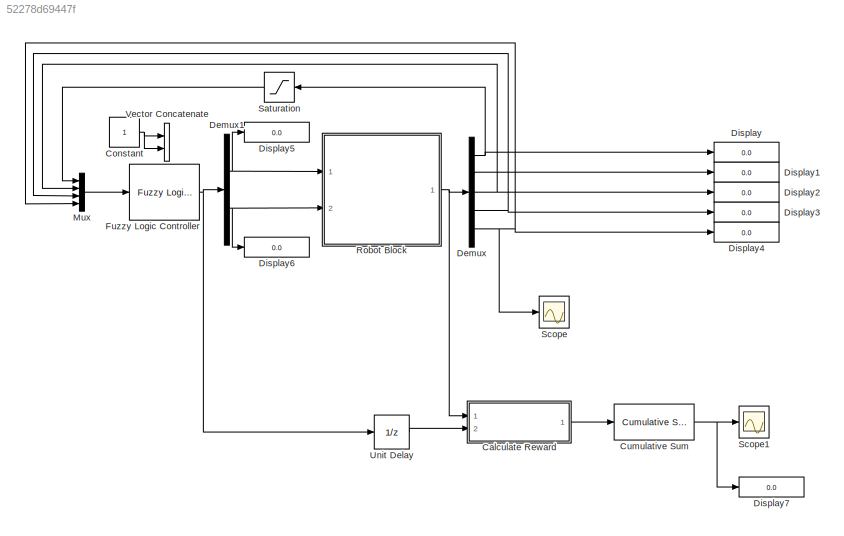
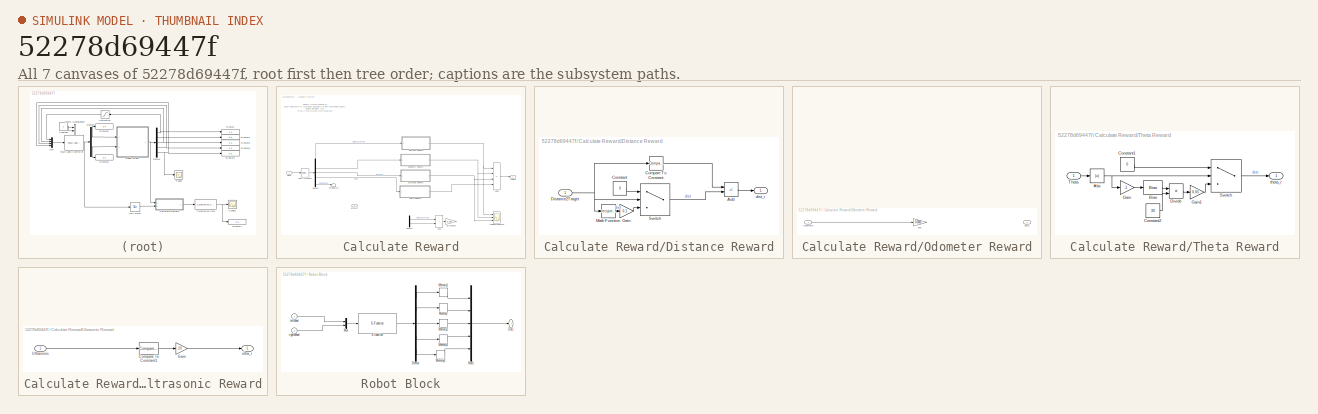
[diagram: thumbnail index - all 7 canvases of the model, root first then tree order]
MODEL slx_52278d69447f
KIND model
CONFIG AbsTol = auto
CONFIG EnableMultiTasking = off
CONFIG FixedStep = 0.050
CONFIG MaxStep = auto
CONFIG MinStep = auto
CONFIG RelTol = 1e-3
CONFIG SampleTimeConstraint = Unconstrained
CONFIG Solver = ode45
CONFIG SolverName = ode45
CONFIG StartTime = 0.0
CONFIG StopTime = inf
WORKSPACE source: mxarray member
WORKSPACE Sig: Simulink.Signal (value not decoded)
WORKSPACE Var = 0
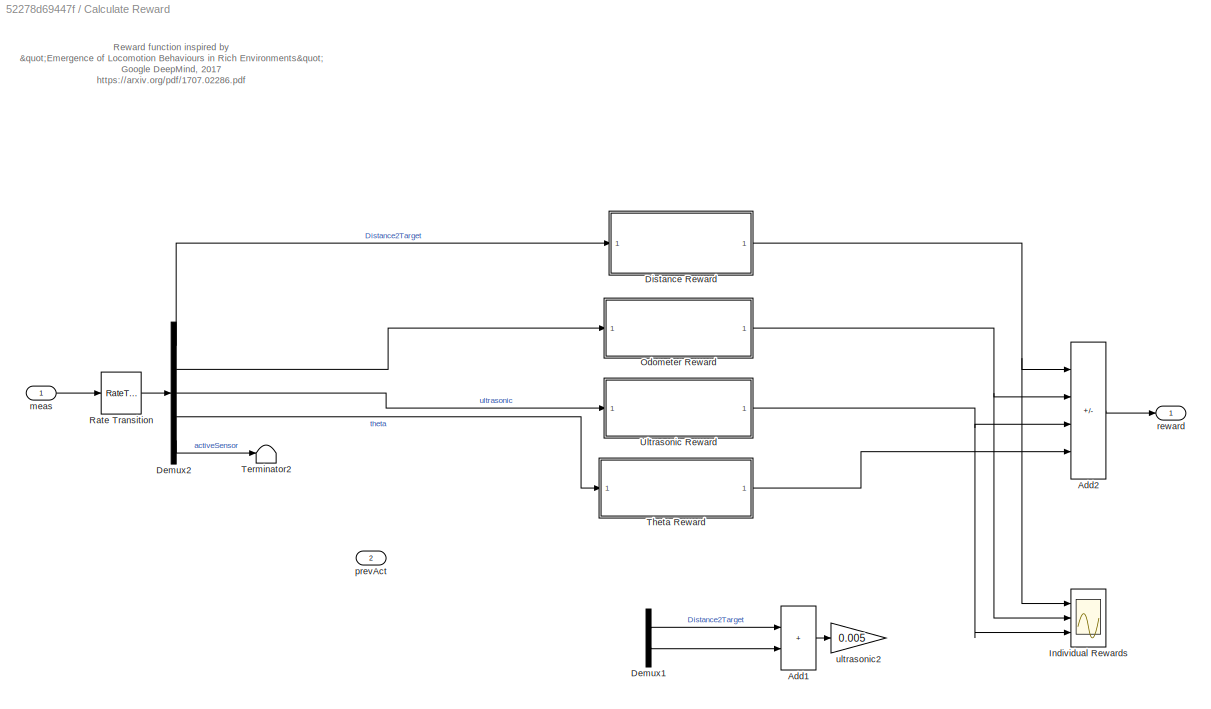
BLOCK [SubSystem] Calculate Reward
  Ports = [2, 1]
  RequestExecContextInheritance = off
BLOCK [Sum] Calculate Reward/Add1
  IconShape = rectangular
  Ports = [2, 1]
BLOCK [Sum] Calculate Reward/Add2
  IconShape = rectangular
  Inputs = +--+
  Ports = [4, 1]
BLOCK [Demux] Calculate Reward/Demux1
  Outputs = 2
  Ports = [1, 2]
BLOCK [Demux] Calculate Reward/Demux2
  Outputs = 5
  Ports = [1, 5]
BLOCK [SubSystem] Calculate Reward/Distance Reward
  Ports = [1, 1]
  RequestExecContextInheritance = off
BLOCK [Sum] Calculate Reward/Distance Reward/Add
  IconShape = rectangular
  Inputs = -+
  Ports = [2, 1]
BLOCK [Reference] Calculate Reward/Distance Reward/Compare To Constant  REF=simulink/Logic and Bit
Operations/Compare
To Constant
  Ports = [1, 1]
  SourceBlock = simulink/Logic and Bit\nOperations/Compare\nTo Constant
  SourceProductBaseCode = SL
  SourceType = Compare To Constant
BLOCK [Constant] Calculate Reward/Distance Reward/Constant
  Value = 0
BLOCK [Inport] Calculate Reward/Distance Reward/Distance2Target
BLOCK [Gain] Calculate Reward/Distance Reward/Gain
  Gain = 0.1
BLOCK [Math] Calculate Reward/Distance Reward/Math Function
  Operator = reciprocal
  Ports = [1, 1]
BLOCK [Switch] Calculate Reward/Distance Reward/Switch
  InputSameDT = off
  SaturateOnIntegerOverflow = off
  Threshold = 1
BLOCK [Outport] Calculate Reward/Distance Reward/dist_r
BLOCK [Scope] Calculate Reward/Individual Rewards
  Floating = off
  NumInputPorts = 3
  Ports = [3]
  ScopeSpecificationString = Simulink.scopes.TimeScopeBlockCfg('CurrentConfiguration', extmgr.ConfigurationSet(extmgr.Configuration('Core','General UI',true),extmgr.Configuration('Core','Source UI',true),extmgr.Configuration('Sources','WiredSimulink',true,'DataLoggingVariableName','ScopeData1'),extmgr.Configuration('Visuals','Time Domain',true,'SerializedDisplays',{struct('MinYLimReal','-0.02519','MaxYLimReal','0.22671','YLab...<+1575ch>
BLOCK [SubSystem] Calculate Reward/Odometer Reward
  Ports = [1, 1]
  RequestExecContextInheritance = off
BLOCK [Inport] Calculate Reward/Odometer Reward/Odometer
BLOCK [Gain] Calculate Reward/Odometer Reward/odo
  Gain = 0.0001
BLOCK [Outport] Calculate Reward/Odometer Reward/odo_r
BLOCK [RateTransition] Calculate Reward/Rate Transition
  OutPortSampleTime = Ts
BLOCK [Terminator] Calculate Reward/Terminator2
BLOCK [SubSystem] Calculate Reward/Theta Reward
  Ports = [1, 1]
  RequestExecContextInheritance = off
BLOCK [Abs] Calculate Reward/Theta Reward/Abs
  SaturateOnIntegerOverflow = off
BLOCK [Bias] Calculate Reward/Theta Reward/Bias
  Bias = 30
  SaturateOnIntegerOverflow = off
BLOCK [Constant] Calculate Reward/Theta Reward/Constant1
  Value = 0
BLOCK [Constant] Calculate Reward/Theta Reward/Constant2
  Value = 30
BLOCK [Product] Calculate Reward/Theta Reward/Divide
  Inputs = */
  Ports = [2, 1]
BLOCK [Gain] Calculate Reward/Theta Reward/Gain
  Gain = -1
BLOCK [Gain] Calculate Reward/Theta Reward/Gain1
  Gain = 0.05
BLOCK [Switch] Calculate Reward/Theta Reward/Switch
  InputSameDT = off
  SaturateOnIntegerOverflow = off
  Threshold = 30
BLOCK [Inport] Calculate Reward/Theta Reward/Theta
  NameLocation = left
BLOCK [Outport] Calculate Reward/Theta Reward/theta_r
BLOCK [SubSystem] Calculate Reward/Ultrasonic Reward
  Ports = [1, 1]
  RequestExecContextInheritance = off
BLOCK [Reference] Calculate Reward/Ultrasonic Reward/Compare To Constant1  REF=simulink/Logic and Bit
Operations/Compare
To Constant
  Ports = [1, 1]
  SourceBlock = simulink/Logic and Bit\nOperations/Compare\nTo Constant
  SourceProductBaseCode = SL
  SourceType = Compare To Constant
BLOCK [Gain] Calculate Reward/Ultrasonic Reward/Gain
  Gain = 20
BLOCK [Inport] Calculate Reward/Ultrasonic Reward/Ultrasonic
BLOCK [Outport] Calculate Reward/Ultrasonic Reward/ultra_r
BLOCK [Inport] Calculate Reward/meas
BLOCK [Inport] Calculate Reward/prevAct
  Port = 2
BLOCK [Outport] Calculate Reward/reward
  VectorParamsAs1DForOutWhenUnconnected = off
BLOCK [Gain] Calculate Reward/ultrasonic2
  Gain = 0.005
BLOCK [Constant] Constant
  VectorParams1D = off
BLOCK [Reference] Cumulative Sum  REF=dspmathops/Cumulative
Sum
  Ports = [1, 1]
  SourceBlock = dspmathops/Cumulative\nSum
  SourceProductBaseCode = DS
  SourceType = Cumulative Sum
  UserDataPersistent = on
BLOCK [Demux] Demux
  Outputs = 5
  Ports = [1, 5]
BLOCK [Demux] Demux1
  Outputs = 2
  Ports = [1, 2]
BLOCK [Display] Display
  Decimation = 1
  Ports = [1]
BLOCK [Display] Display1
  Decimation = 1
  Ports = [1]
BLOCK [Display] Display2
  Decimation = 1
  Ports = [1]
BLOCK [Display] Display3
  Decimation = 1
  Ports = [1]
BLOCK [Display] Display4
  Decimation = 1
  Ports = [1]
BLOCK [Display] Display5
  Decimation = 1
  Ports = [1]
BLOCK [Display] Display6
  Decimation = 1
  Ports = [1]
BLOCK [Display] Display7
  Decimation = 1
  Ports = [1]
BLOCK [Reference] Fuzzy Logic Controller  REF=fuzblock/Fuzzy Logic   (lib defined in mdl_858b3b3e7478)
Controller
  Ports = [1, 1]
  SourceBlock = fuzblock/Fuzzy Logic \nController
  SourceProductBaseCode = FL
  SourceType = Fuzzy Inference System
BLOCK [Mux] Mux
  DisplayOption = bar
  Ports = [4, 1]
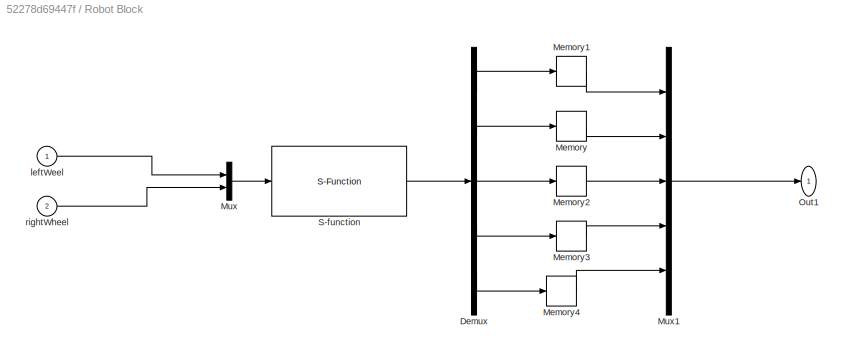
BLOCK [SubSystem] Robot Block
  Ports = [2, 1]
  RequestExecContextInheritance = off
BLOCK [Demux] Robot Block/Demux
  Outputs = 5
  Ports = [1, 5]
BLOCK [Memory] Robot Block/Memory
BLOCK [Memory] Robot Block/Memory1
  InitialCondition = 1000
BLOCK [Memory] Robot Block/Memory2
BLOCK [Memory] Robot Block/Memory3
BLOCK [Memory] Robot Block/Memory4
BLOCK [Mux] Robot Block/Mux
  DisplayOption = bar
  Inputs = 2
  Ports = [2, 1]
BLOCK [Mux] Robot Block/Mux1
  DisplayOption = bar
  Inputs = 5
  Ports = [5, 1]
BLOCK [Outport] Robot Block/Out1
  IconDisplay = Port number and signal name
BLOCK [S-Function] Robot Block/S-function
  EnableBusSupport = off
  FunctionName = roboanimate_org
  Parameters = stObj
  Ports = [1, 1]
  SFcnIsStateOwnerBlock = off
  SFunctionDeploymentMode = off
BLOCK [Inport] Robot Block/leftWeel
BLOCK [Inport] Robot Block/rightWheel
  Port = 2
BLOCK [Saturate] Saturation
  UpperLimit = 10
BLOCK [Scope] Scope
  Floating = off
  NumInputPorts = 1
  Ports = [1]
  ScopeSpecificationString = Simulink.scopes.TimeScopeBlockCfg('CurrentConfiguration', extmgr.ConfigurationSet(extmgr.Configuration('Core','General UI',true),extmgr.Configuration('Core','Source UI',true),extmgr.Configuration('Sources','WiredSimulink',true),extmgr.Configuration('Visuals','Time Domain',true,'SerializedDisplays',{struct('MinYLimReal','-10.75','MaxYLimReal','6.75','YLabelReal','','MinYLimMag','0.00000','MaxYLimMa...<+1342ch>
BLOCK [Scope] Scope1
  Floating = off
  NumInputPorts = 1
  Ports = [1]
  ScopeSpecificationString = Simulink.scopes.TimeScopeBlockCfg('CurrentConfiguration', extmgr.ConfigurationSet(extmgr.Configuration('Core','General UI',true),extmgr.Configuration('Core','Source UI',true),extmgr.Configuration('Sources','WiredSimulink',true,'DataLoggingVariableName','ScopeData1'),extmgr.Configuration('Visuals','Time Domain',true,'SerializedDisplays',{struct('MinYLimReal','-3.47576','MaxYLimReal','220.87254','YL...<+1455ch>
BLOCK [UnitDelay] Unit Delay
  HasFrameUpgradeWarning = on
  SampleTime = -1
BLOCK [Concatenate] Vector Concatenate
  Ports = [2, 1]
ANNOTATION Calculate Reward: Reward function inspired by "Emergence of Locomotion Behaviours in Rich Environments" Google DeepMind, 2017 https://arxiv.org/pdf/1707.02286.pdf
LINE Calculate Reward/Add1:1 -> Calculate Reward/ultrasonic2:1
LINE Calculate Reward/Add2:1 -> Calculate Reward/reward:1
LINE Calculate Reward/Demux1:1 -> Calculate Reward/Add1:1
LINE Calculate Reward/Demux1:2 -> Calculate Reward/Add1:2
LINE Calculate Reward/Demux2:1 -> Calculate Reward/Distance Reward:1
LINE Calculate Reward/Demux2:2 -> Calculate Reward/Odometer Reward:1
LINE Calculate Reward/Demux2:3 -> Calculate Reward/Ultrasonic Reward:1
LINE Calculate Reward/Demux2:4 -> Calculate Reward/Theta Reward:1
LINE Calculate Reward/Demux2:5 -> Calculate Reward/Terminator2:1
LINE Calculate Reward/Distance Reward/Add:1 -> Calculate Reward/Distance Reward/dist_r:1
LINE Calculate Reward/Distance Reward/Compare To Constant:1 -> Calculate Reward/Distance Reward/Add:1
LINE Calculate Reward/Distance Reward/Constant:1 -> Calculate Reward/Distance Reward/Switch:1
NET Calculate Reward/Distance Reward/Distance2Target:1 -> Calculate Reward/Distance Reward/Compare To Constant:1, Calculate Reward/Distance Reward/Math Function:1, Calculate Reward/Distance Reward/Switch:2
LINE Calculate Reward/Distance Reward/Gain:1 -> Calculate Reward/Distance Reward/Switch:3
LINE Calculate Reward/Distance Reward/Math Function:1 -> Calculate Reward/Distance Reward/Gain:1
LINE Calculate Reward/Distance Reward/Switch:1 -> Calculate Reward/Distance Reward/Add:2
NET Calculate Reward/Distance Reward:1 -> Calculate Reward/Add2:1, Calculate Reward/Individual Rewards:1
LINE Calculate Reward/Odometer Reward/Odometer:1 -> Calculate Reward/Odometer Reward/odo:1
NET Calculate Reward/Odometer Reward:1 -> Calculate Reward/Add2:2, Calculate Reward/Individual Rewards:2
LINE Calculate Reward/Rate Transition:1 -> Calculate Reward/Demux2:1
NET Calculate Reward/Theta Reward/Abs:1 -> Calculate Reward/Theta Reward/Gain:1, Calculate Reward/Theta Reward/Switch:2
LINE Calculate Reward/Theta Reward/Bias:1 -> Calculate Reward/Theta Reward/Divide:1
LINE Calculate Reward/Theta Reward/Constant1:1 -> Calculate Reward/Theta Reward/Switch:1
LINE Calculate Reward/Theta Reward/Constant2:1 -> Calculate Reward/Theta Reward/Divide:2
LINE Calculate Reward/Theta Reward/Divide:1 -> Calculate Reward/Theta Reward/Gain1:1
LINE Calculate Reward/Theta Reward/Gain1:1 -> Calculate Reward/Theta Reward/Switch:3
LINE Calculate Reward/Theta Reward/Gain:1 -> Calculate Reward/Theta Reward/Bias:1
LINE Calculate Reward/Theta Reward/Switch:1 -> Calculate Reward/Theta Reward/theta_r:1
LINE Calculate Reward/Theta Reward/Theta:1 -> Calculate Reward/Theta Reward/Abs:1
LINE Calculate Reward/Theta Reward:1 -> Calculate Reward/Add2:4
LINE Calculate Reward/Ultrasonic Reward/Compare To Constant1:1 -> Calculate Reward/Ultrasonic Reward/Gain:1
LINE Calculate Reward/Ultrasonic Reward/Gain:1 -> Calculate Reward/Ultrasonic Reward/ultra_r:1
LINE Calculate Reward/Ultrasonic Reward/Ultrasonic:1 -> Calculate Reward/Ultrasonic Reward/Compare To Constant1:1
NET Calculate Reward/Ultrasonic Reward:1 -> Calculate Reward/Add2:3, Calculate Reward/Individual Rewards:3
LINE Calculate Reward/meas:1 -> Calculate Reward/Rate Transition:1
LINE Calculate Reward:1 -> Cumulative Sum:1
NET Constant:1 -> Vector Concatenate:1, Vector Concatenate:2
NET Cumulative Sum:1 -> Display7:1, Scope1:1
NET Demux1:1 -> Display5:1, Robot Block:1
NET Demux1:2 -> Display6:1, Robot Block:2
NET Demux:1 -> Display:1, Saturation:1
LINE Demux:2 -> Display1:1
NET Demux:3 -> Display2:1, Mux:2
NET Demux:4 -> Display3:1, Mux:3
NET Demux:5 -> Display4:1, Mux:4, Scope:1
NET Fuzzy Logic Controller:1 -> Demux1:1, Unit Delay:1
LINE Mux:1 -> Fuzzy Logic Controller:1
LINE Robot Block/Demux:1 -> Robot Block/Memory1:1
LINE Robot Block/Demux:2 -> Robot Block/Memory:1
LINE Robot Block/Demux:3 -> Robot Block/Memory2:1
LINE Robot Block/Demux:4 -> Robot Block/Memory3:1
LINE Robot Block/Demux:5 -> Robot Block/Memory4:1
LINE Robot Block/Memory1:1 -> Robot Block/Mux1:1
LINE Robot Block/Memory2:1 -> Robot Block/Mux1:3
LINE Robot Block/Memory3:1 -> Robot Block/Mux1:4
LINE Robot Block/Memory4:1 -> Robot Block/Mux1:5
LINE Robot Block/Memory:1 -> Robot Block/Mux1:2
LINE Robot Block/Mux1:1 -> Robot Block/Out1:1
LINE Robot Block/Mux:1 -> Robot Block/S-function:1
LINE Robot Block/S-function:1 -> Robot Block/Demux:1
LINE Robot Block/leftWeel:1 -> Robot Block/Mux:1
LINE Robot Block/rightWheel:1 -> Robot Block/Mux:2
NET Robot Block:1 -> Calculate Reward:1, Demux:1
LINE Saturation:1 -> Mux:1
LINE Unit Delay:1 -> Calculate Reward:2
note: NET lines group one-source signal fan-out (src -> all destinations, sorted); 1:1 wires keep LINE
